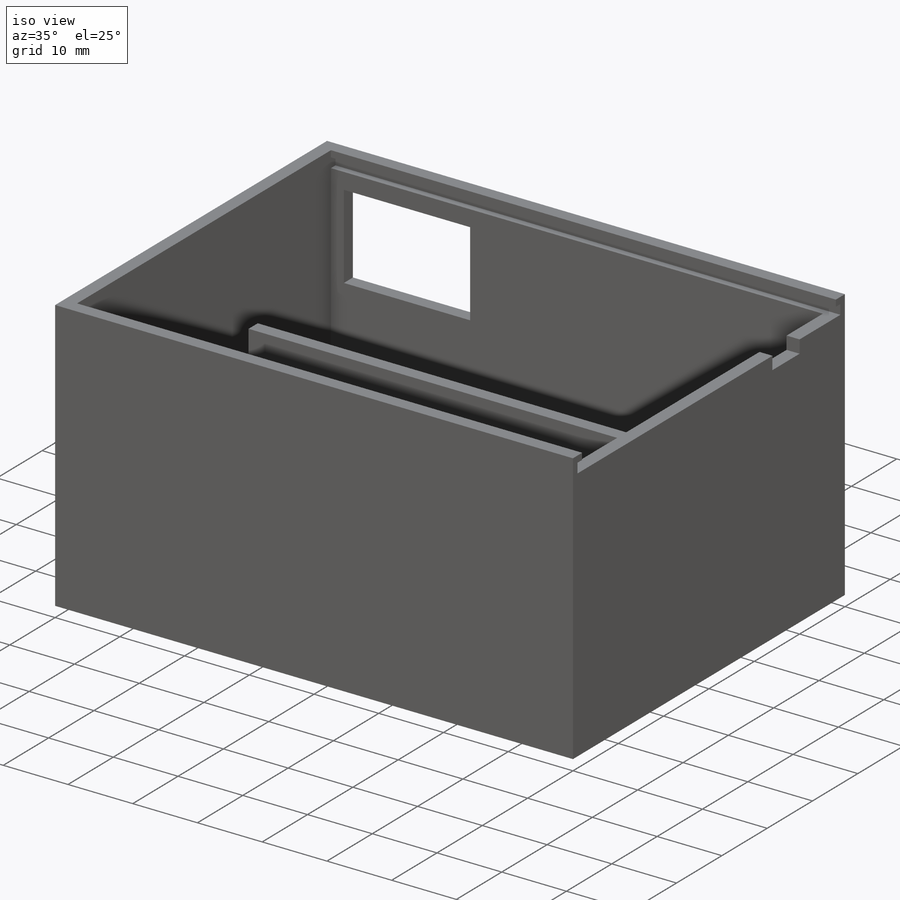
[diagram: iso view]
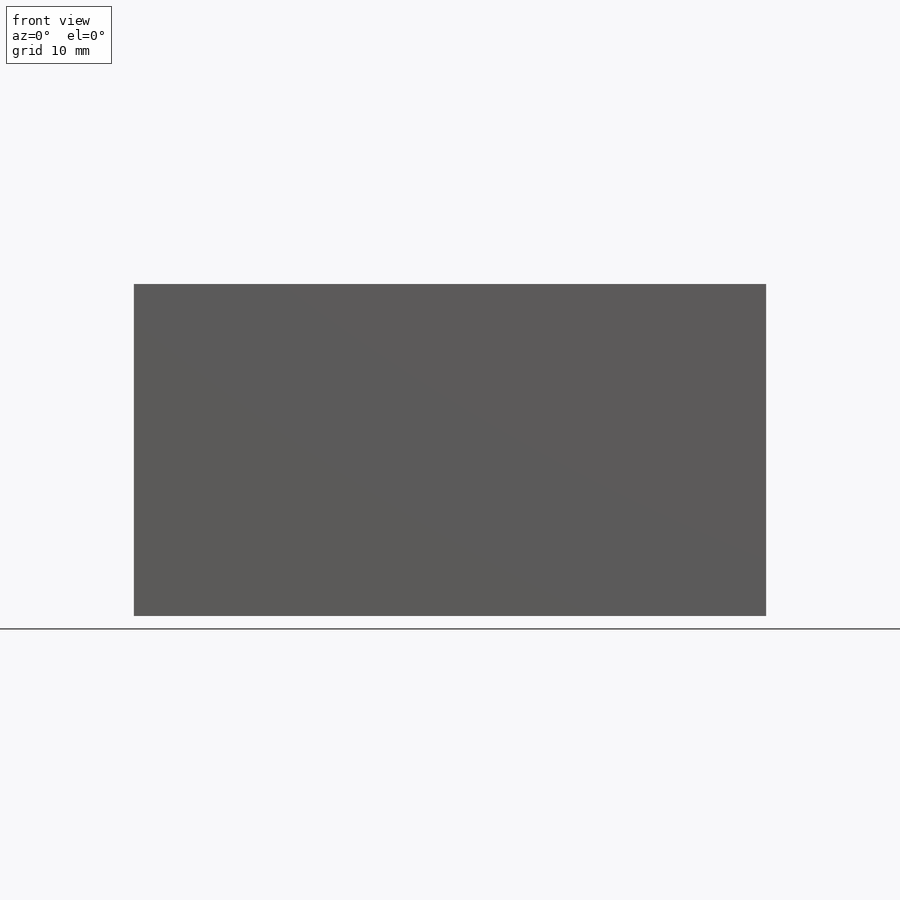
[diagram: front view]
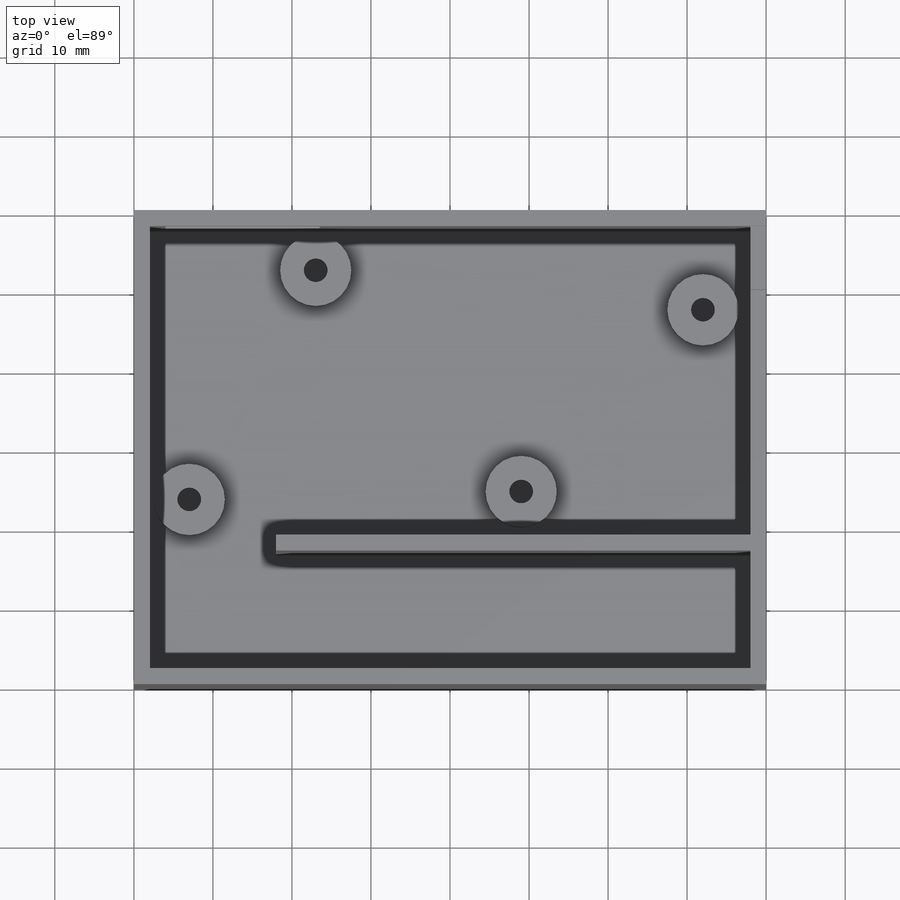
[diagram: top view]
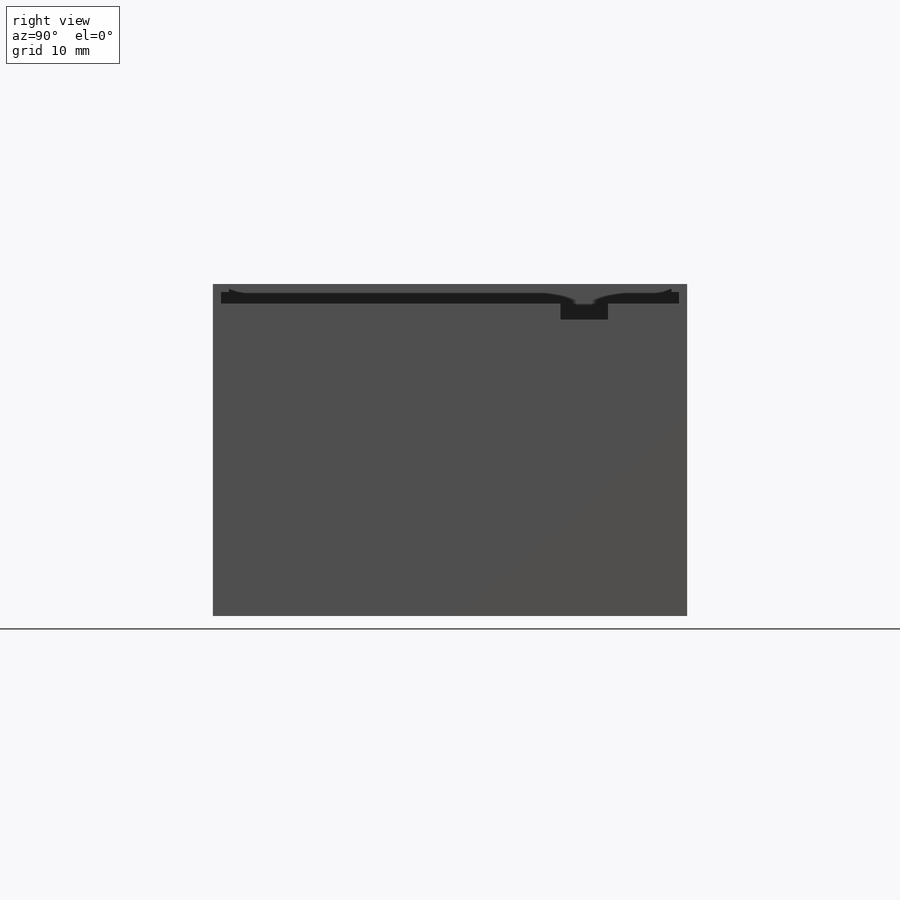
[diagram: right view]
SOLIDWORKS PART (.sldprt)
format: sldprt  version: not decoded by parser v0  size: 307,712 bytes
history: native  units: mm
features: sketch x8, extrude x4, cut_extrude x4, plane x3, material x1, shell x1 (+9 scaffold rows collapsed)
feature tree (30):
  scaffold x9  (default folders/planes/origin — collapsed)
  material  "Material <nicht festgelegt>"
  plane  "Ebene vorne"
  plane  "Ebene oben"
  plane  "Ebene rechts"
  sketch  "Skizze1"  dims[D1=60.0mm D2=80.0mm]
  extrude  "Aufsatz-Linear austragen1"  Depth=42mm
  shell  "Wandung1"  Thickness=2mm
  sketch  "Skizze2"  dims[D1=2.0mm D2=15.0mm D3=60.0mm]
  extrude  "Aufsatz-Linear austragen2"  Depth=35mm
  sketch  "Skizze3"  dims[c1.D5=3.0mm c1.D6=~13.33819mm c1.D7=3.0mm c1.D8=3.2mm c1.D1=5.0mm c1.D2=5.0mm c1.D3=29.0mm c1.D4=16.0mm c2.D6=3.0mm c2.D8=3.0mm]
  extrude  "Aufsatz-Linear austragen3"  Depth=4mm
  sketch  "Skizze4"  dims[c1.D5=3.0mm c1.D6=3.0mm c1.D7=3.0mm c1.D8=~11.706264mm c1.D1=6.0mm c1.D2=6.0mm c1.D3=23.0mm c1.D4=23.0mm c2.D6=3.0mm c2.D8=3.0mm]
  extrude  "Aufsatz-Linear austragen4"  Depth=4mm
  sketch  "Skizze6"  dims[D1=2.0mm D2=2.0mm D3=2.0mm]
  sketch  "Skizze7"  dims[D1=1.5mm D2=1.0mm D3=1.0mm D4=1.0mm]
  cut_extrude  "Schnitt-Linear austragen1"  [1 undecoded]
  cut_extrude  "Schnitt-Linear austragen2"  [1 undecoded]
  sketch  "Skizze8"  dims[D1=6.0mm D2=2.0mm D3=10.0mm]
  cut_extrude  "Schnitt-Linear austragen3"  [1 undecoded]
  sketch  "Skizze9"  dims[D1=4.0mm D2=19.5mm D3=13.0mm D4=5.0mm]
  cut_extrude  "Schnitt-Linear austragen5"  [1 undecoded]
decode coverage: 13 of 17 modeling features carry decoded parameters
note: ~ marks probable driven/reference dimensions
note: 4 parameter values undecoded
summary: no parameter record found for 4 features
note: suppression state not decoded; provenance and decode notes live in map.json
